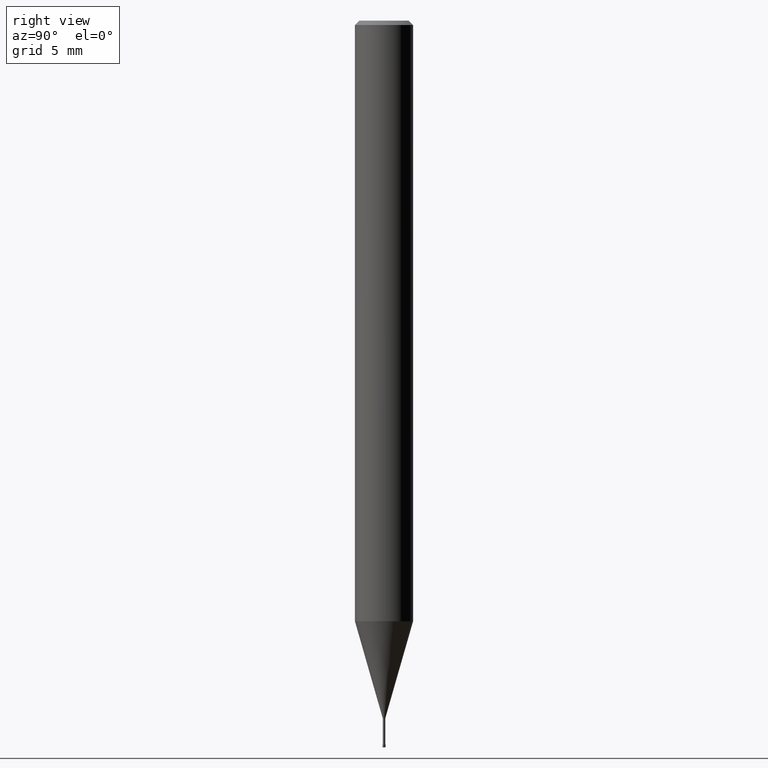
[diagram: clean part render]
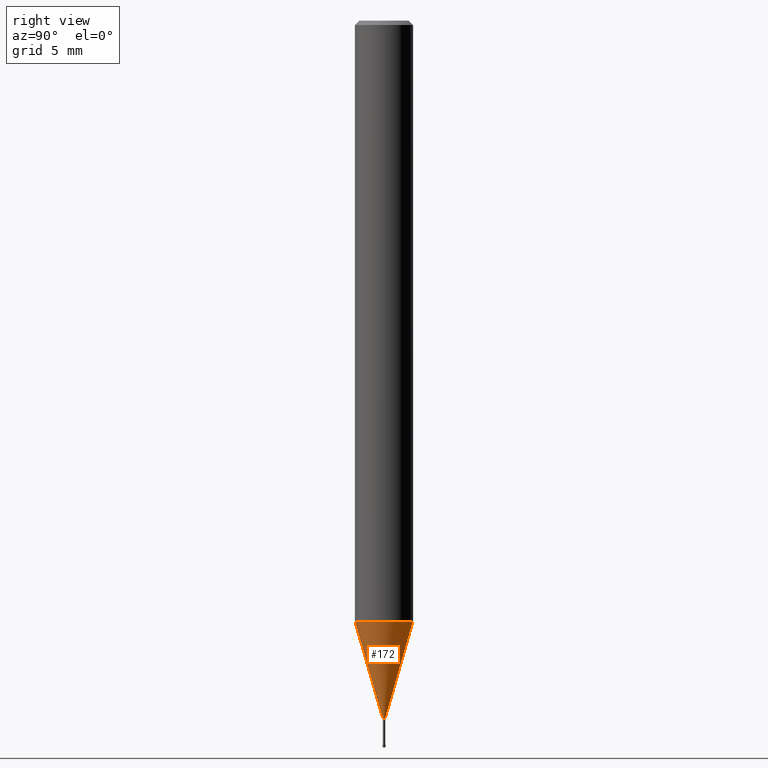
[diagram: same view with one face highlighted and labeled with its STEP entity id]
A machine part, right view. The second image highlights one B-rep face of the part: STEP entity #172.
In plain terms, the highlighted conical surface has half-angle 16.001 deg.
Its self-contained STEP definition (entity closure, byte-faithful):
#130=VERTEX_POINT('',#287);
#132=VERTEX_POINT('',#289);
#142=EDGE_CURVE('',#204,#132,#300,.T.);
#144=EDGE_CURVE('',#130,#204,#302,.T.);
#154=VERTEX_POINT('',#313);
#168=EDGE_CURVE('',#154,#132,#330,.T.);
#172=ADVANCED_FACE('',(#334),#335,.T.);
#204=VERTEX_POINT('',#371);
#230=EDGE_CURVE('',#154,#130,#401,.T.);
#287=CARTESIAN_POINT('',(0.0,0.08495,-48.0));
#289=CARTESIAN_POINT('',(2.44915147732706E-016,-1.99995,-41.322));
#300=LINE('',#473,#474);
#302=CIRCLE('',#477,0.08495);
#313=CARTESIAN_POINT('',(0.0,1.99995,-41.322));
#330=CIRCLE('',#511,1.99995);
#334=FACE_OUTER_BOUND('',#515,.T.);
#335=CONICAL_SURFACE('',#516,1.04245,0.279268497676986);
#371=CARTESIAN_POINT('',(1.04030309757211E-017,-0.08495,-48.0));
#401=LINE('',#600,#601);
#473=CARTESIAN_POINT('',(1.27659089354214E-016,-1.04245,-44.661));
#474=VECTOR('',#665,1.0);
#477=AXIS2_PLACEMENT_3D('',#666,#667,#668);
#511=AXIS2_PLACEMENT_3D('',#703,#704,#705);
#515=EDGE_LOOP('',(#707,#708,#709,#710));
#516=AXIS2_PLACEMENT_3D('',#711,#712,#713);
#600=CARTESIAN_POINT('',(-1.27659089354214E-016,1.04245,-44.661));
#601=VECTOR('',#802,1.0);
#665=DIRECTION('',(3.37565876916665E-017,-0.275652560402792,0.961257335963365));
#666=CARTESIAN_POINT('',(0.0,0.0,-48.0));
#667=DIRECTION('',(0.0,0.0,-1.0));
#668=DIRECTION('',(0.0,1.0,0.0));
#703=CARTESIAN_POINT('',(0.0,0.0,-41.322));
#704=DIRECTION('',(0.0,0.0,-1.0));
#705=DIRECTION('',(0.0,1.0,0.0));
#707=ORIENTED_EDGE('',*,*,#230,.F.);
#708=ORIENTED_EDGE('',*,*,#168,.T.);
#709=ORIENTED_EDGE('',*,*,#142,.F.);
#710=ORIENTED_EDGE('',*,*,#144,.F.);
#711=CARTESIAN_POINT('',(0.0,0.0,-44.661));
#712=DIRECTION('',(-0.0,-0.0,1.0));
#713=DIRECTION('',(0.0,1.0,0.0));
#802=DIRECTION('',(3.37565876916665E-017,-0.275652560402792,-0.961257335963365));